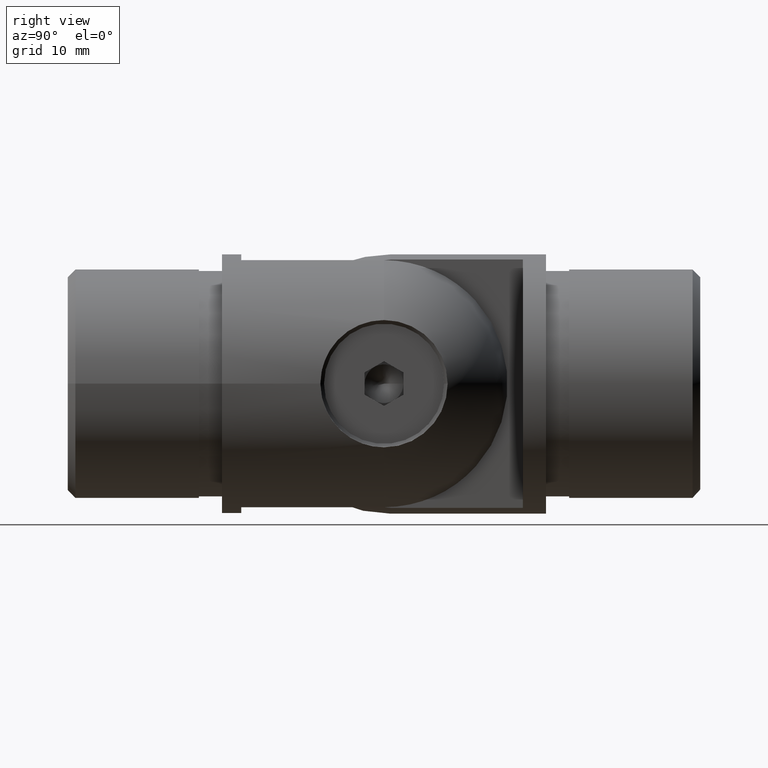
[diagram: clean part render]
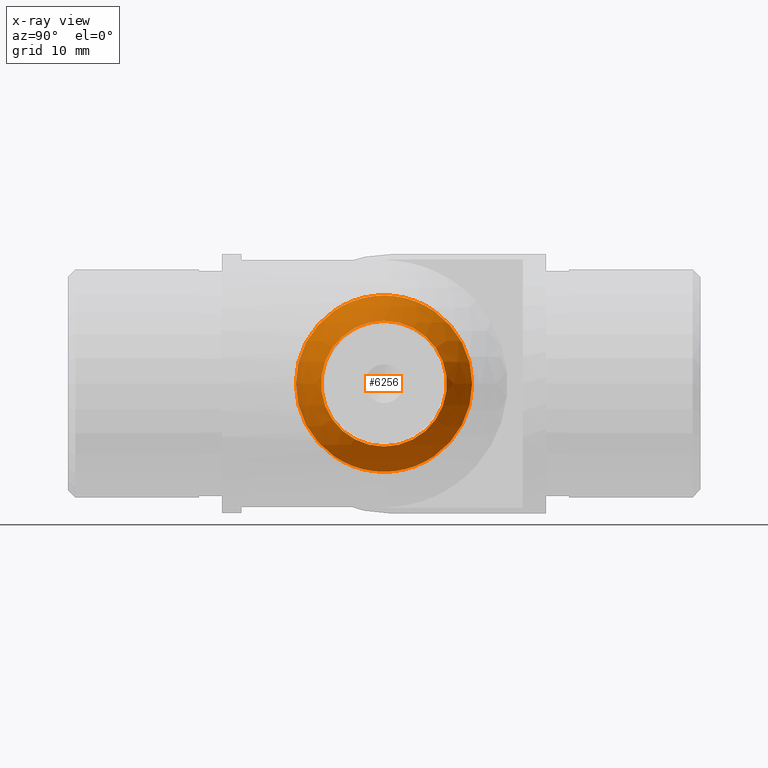
[diagram: x-ray — body ghosted, one internal face saturated and labeled with its STEP entity id]
A machine part, right view, then the same camera in x-ray: the body is ghosted and one INTERNAL B-rep face — a face not visible from any outside direction — is saturated and labeled: STEP entity #6256.
In plain terms, the highlighted spherical surface has radius 12.58 mm.
Its self-contained STEP definition (entity closure, byte-faithful):
#132 = AXIS2_PLACEMENT_3D ( 'NONE', #15028, #4467, #12771 ) ;
#473 = SPHERICAL_SURFACE ( 'NONE', #10165, 12.58000000000000200 ) ;
#1088 = EDGE_CURVE ( 'NONE', #1757, #1757, #4623, .T. ) ;
#1757 = VERTEX_POINT ( 'NONE', #13287 ) ;
#2493 = VERTEX_POINT ( 'NONE', #13749 ) ;
#2541 = DIRECTION ( 'NONE',  ( 0.0000000000000000000, 0.0000000000000000000, -1.000000000000000000 ) ) ;
#2724 = CARTESIAN_POINT ( 'NONE',  ( 5.250000000000002700, 20.99999999999999600, 0.0000000000000000000 ) ) ;
#3408 = ORIENTED_EDGE ( 'NONE', *, *, #13550, .T. ) ;
#3720 = DIRECTION ( 'NONE',  ( 1.000000000000000000, 0.0000000000000000000, 0.0000000000000000000 ) ) ;
#3986 = FACE_OUTER_BOUND ( 'NONE', #14293, .T. ) ;
#4467 = DIRECTION ( 'NONE',  ( 1.000000000000000000, 0.0000000000000000000, 0.0000000000000000000 ) ) ;
#4623 = CIRCLE ( 'NONE', #132, 8.147668393721435400 ) ;
#4978 = EDGE_LOOP ( 'NONE', ( #12873 ) ) ;
#6256 = ADVANCED_FACE ( 'NONE', ( #10659, #3986 ), #473, .F. ) ;
#6599 = CIRCLE ( 'NONE', #7624, 11.43214328111750300 ) ;
#7624 = AXIS2_PLACEMENT_3D ( 'NONE', #2724, #8615, #13460 ) ;
#8615 = DIRECTION ( 'NONE',  ( -1.000000000000000000, -1.301042606982605300E-016, -0.0000000000000000000 ) ) ;
#10165 = AXIS2_PLACEMENT_3D ( 'NONE', #14372, #2541, #3720 ) ;
#10659 = FACE_BOUND ( 'NONE', #4978, .T. ) ;
#12771 = DIRECTION ( 'NONE',  ( 0.0000000000000000000, 0.0000000000000000000, 1.000000000000000000 ) ) ;
#12873 = ORIENTED_EDGE ( 'NONE', *, *, #1088, .T. ) ;
#13287 = CARTESIAN_POINT ( 'NONE',  ( 9.584983033159353700, 20.99999999999999600, 8.147668393721435400 ) ) ;
#13460 = DIRECTION ( 'NONE',  ( -1.517408794938787900E-016, 1.000000000000000000, 0.0000000000000000000 ) ) ;
#13550 = EDGE_CURVE ( 'NONE', #2493, #2493, #6599, .T. ) ;
#13749 = CARTESIAN_POINT ( 'NONE',  ( 5.250000000000000900, 32.43214328111750400, 0.0000000000000000000 ) ) ;
#14293 = EDGE_LOOP ( 'NONE', ( #3408 ) ) ;
#14372 = CARTESIAN_POINT ( 'NONE',  ( 0.0000000000000000000, 20.99999999999999600, 0.0000000000000000000 ) ) ;
#15028 = CARTESIAN_POINT ( 'NONE',  ( 9.584983033159353700, 20.99999999999999600, 0.0000000000000000000 ) ) ;